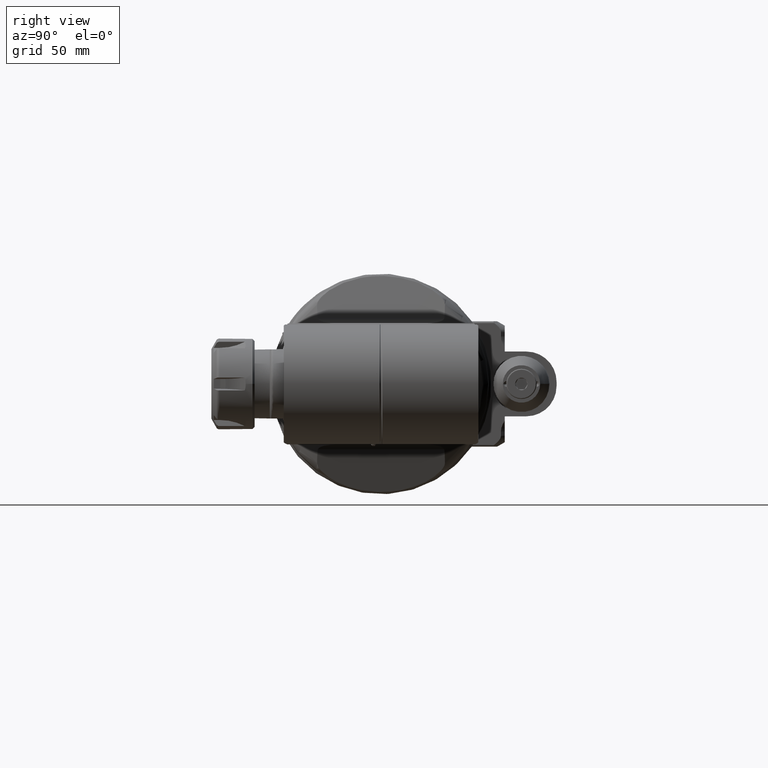
[diagram: clean part render]
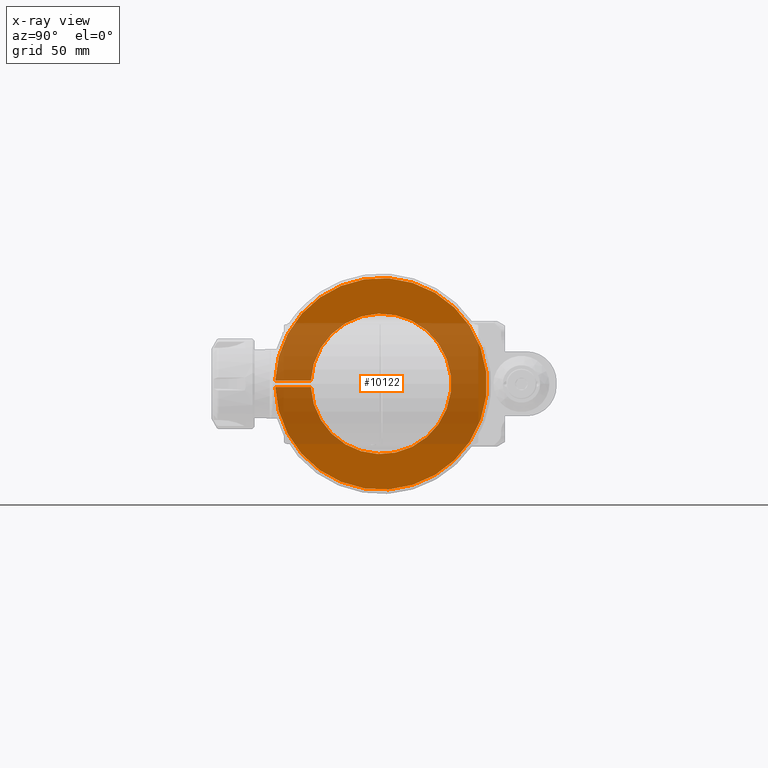
[diagram: x-ray — body ghosted, one internal face saturated and labeled with its STEP entity id]
A machine part, right view, then the same camera in x-ray: the body is ghosted and one INTERNAL B-rep face — a face not visible from any outside direction — is saturated and labeled: STEP entity #10122.
In plain terms, the highlighted planar face has unit normal (1, 0, 0).
Its self-contained STEP definition (entity closure, byte-faithful):
#403=PLANE('',#10825);
#800=FACE_OUTER_BOUND('',#1435,.T.);
#1435=EDGE_LOOP('',(#6844,#6845,#6846,#6847));
#2144=CIRCLE('',#10821,49.);
#2147=CIRCLE('',#10826,32.5);
#2867=LINE('',#14963,#3525);
#2872=LINE('',#14997,#3530);
#3525=VECTOR('',#11969,16.51166927349);
#3530=VECTOR('',#11980,16.51166927349);
#4197=VERTEX_POINT('',#14952);
#4198=VERTEX_POINT('',#14956);
#4199=VERTEX_POINT('',#14962);
#4207=VERTEX_POINT('',#14996);
#5238=EDGE_CURVE('',#4198,#4197,#2144,.T.);
#5240=EDGE_CURVE('',#4199,#4198,#2867,.T.);
#5249=EDGE_CURVE('',#4197,#4207,#2872,.T.);
#5250=EDGE_CURVE('',#4207,#4199,#2147,.T.);
#6844=ORIENTED_EDGE('',*,*,#5238,.T.);
#6845=ORIENTED_EDGE('',*,*,#5249,.T.);
#6846=ORIENTED_EDGE('',*,*,#5250,.T.);
#6847=ORIENTED_EDGE('',*,*,#5240,.T.);
#10122=ADVANCED_FACE('',(#800),#403,.T.);
#10821=AXIS2_PLACEMENT_3D('',#14957,#11965,#11966);
#10825=AXIS2_PLACEMENT_3D('',#14995,#11978,#11979);
#10826=AXIS2_PLACEMENT_3D('',#14998,#11981,#11982);
#11965=DIRECTION('center_axis',(1.,0.,0.));
#11966=DIRECTION('ref_axis',(0.,1.,0.));
#11969=DIRECTION('',(0.,-1.,0.));
#11978=DIRECTION('center_axis',(1.,0.,0.));
#11979=DIRECTION('ref_axis',(0.,-1.,0.));
#11980=DIRECTION('',(0.,1.,0.));
#11981=DIRECTION('center_axis',(-1.,0.,0.));
#11982=DIRECTION('ref_axis',(0.,-0.998934343430642,0.0461538461538519));
#14952=CARTESIAN_POINT('',(-12.,-48.97703543499,1.5));
#14956=CARTESIAN_POINT('',(-12.,-48.97703543499,-1.5));
#14957=CARTESIAN_POINT('Origin',(-12.,0.,0.));
#14962=CARTESIAN_POINT('',(-12.,-32.4653661615,-1.5));
#14963=CARTESIAN_POINT('',(-12.,-32.4653661615,-1.5));
#14995=CARTESIAN_POINT('Origin',(-12.,-49.13074005203,0.));
#14996=CARTESIAN_POINT('',(-12.,-32.4653661615,1.5));
#14997=CARTESIAN_POINT('',(-12.,-48.97703543499,1.5));
#14998=CARTESIAN_POINT('Origin',(-12.,0.,0.));